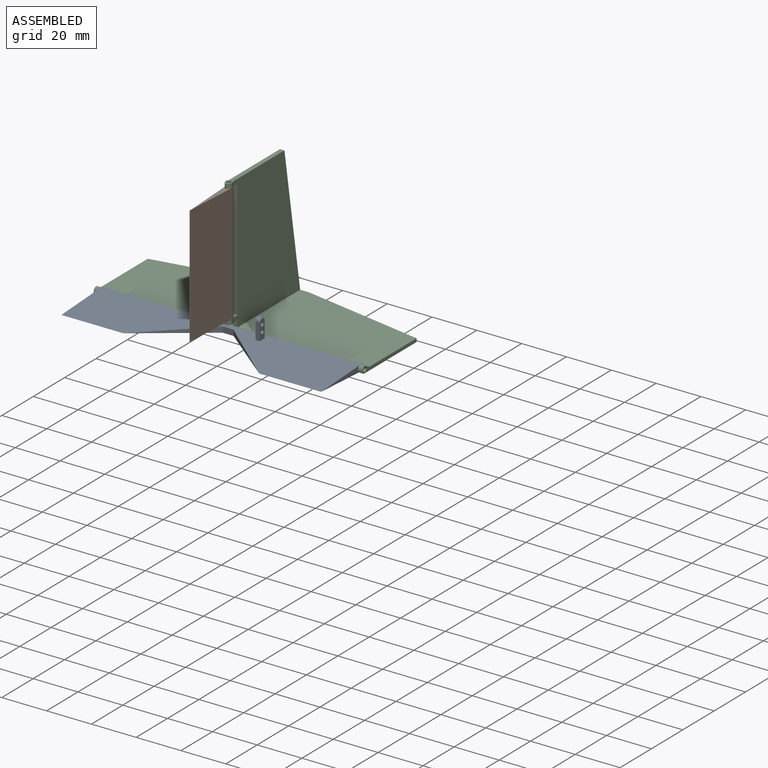
[diagram: assembled view]
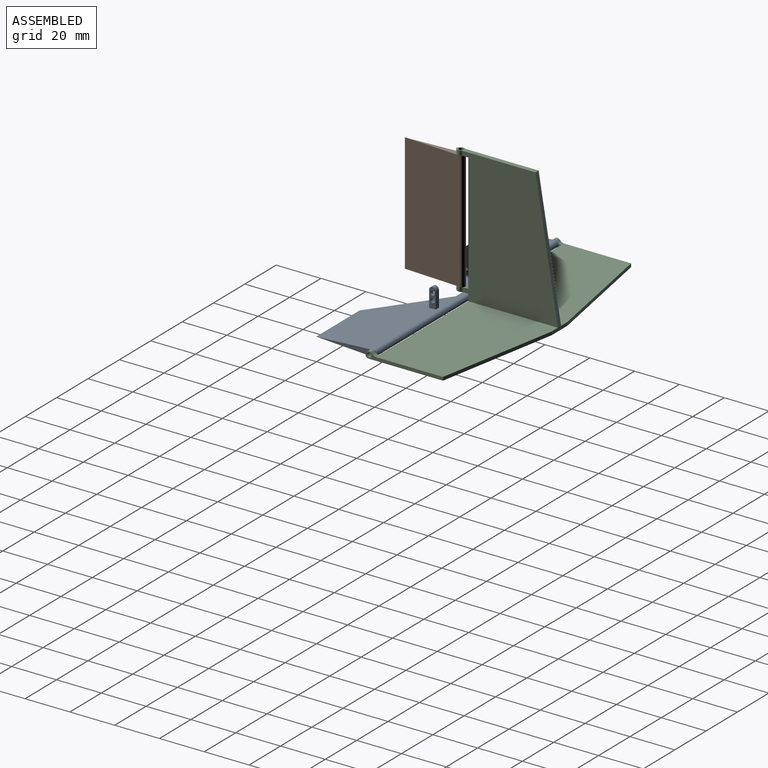
[diagram: assembled view, second angle]
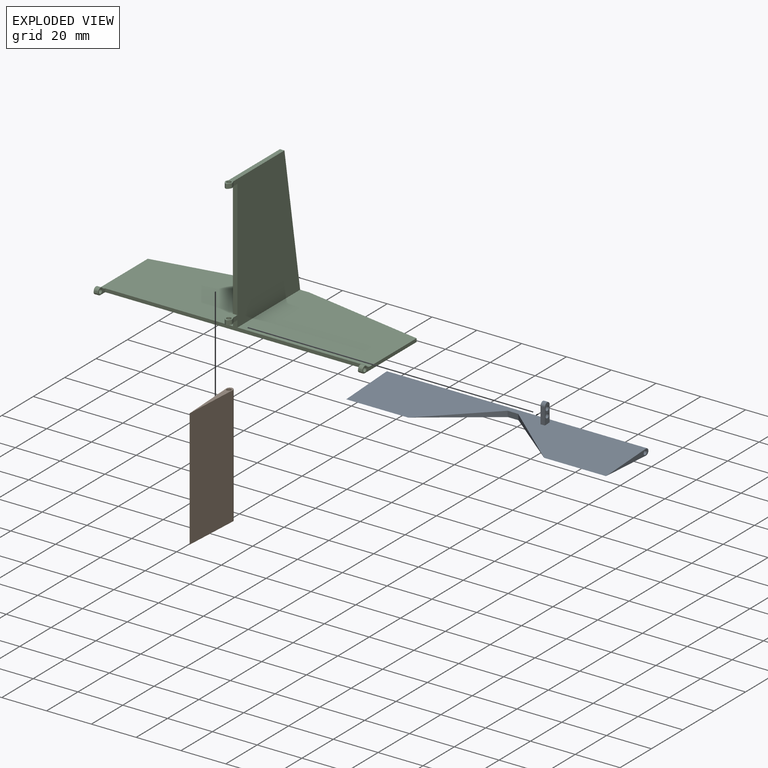
[diagram: exploded view]
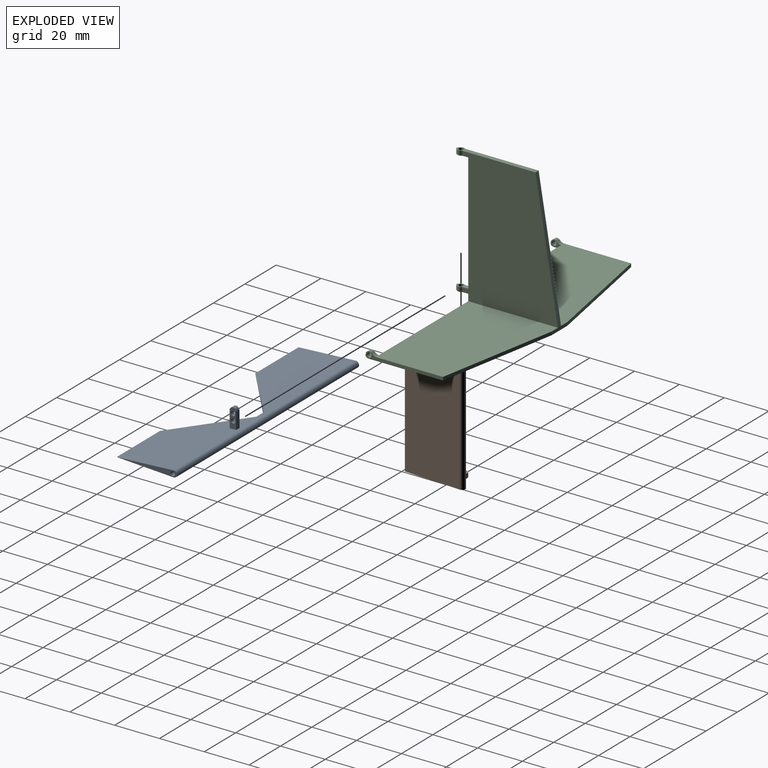
[diagram: exploded view, second angle]
ASSEMBLY  parts=3 mates=2
PART A: 17 faces, bbox 116x27x11.4 mm
  f0: plane 116x25.42mm, normal (0,-0.06,1), area 2179.4mm2, adj f1,f3,f5,f6,f7,f8,f9,f10
  f1: plane 116x25.42mm, normal (0,-0.06,-1), area 2180.6mm2, adj f0,f2,f5,f6,f7,f8,f9
  f2: cylinder r=1.5mm len=116mm, axis (-1,0,0), area 273mm2, adj f1,f3,f5,f6
  f3: cylinder r=1.5mm len=116mm, axis (-1,0,0), area 273mm2, adj f0,f2,f5,f6
  f4: cylinder r=1mm len=116mm, axis (-1,0,0), area 728.8mm2, adj f5,f6
  f5: plane 27x2.83mm, normal (1,0,0), area 36.3mm2, adj f0,f1,f2,f3,f4
  f6: plane 27x2.83mm, normal (-1,0,0), area 36.3mm2, adj f0,f1,f2,f3,f4
  f7: plane 27.95x23.57mm, normal (-0.64,-0.76,-0.04), area 47.7mm2, adj f0,f1,f8
  f8: plane 4.77x2.61mm, normal (0,-1,-0.06), area 12.5mm2, adj f0,f1,f7,f9
  f9: plane 27.95x23.57mm, normal (0.64,-0.76,-0.04), area 47.7mm2, adj f0,f1,f8
  f10: plane 7.33x2mm, normal (0,-1,0), area 14.7mm2, adj f0,f14,f15,f16
  f11: plane 7.17x2mm, normal (0,1,0), area 14.3mm2, adj f0,f14,f15,f16
  f12: cylinder r=1mm len=2mm, axis (-1,0,0), area 12.6mm2, adj f15,f16
  f13: cylinder r=1mm len=2mm, axis (-1,0,0), area 12.6mm2, adj f15,f16
  f14: cylinder r=1.5mm len=3mm, axis (-1,0,0), area 9.4mm2, adj f10,f11,f15,f16
  f15: plane 8.83x3mm, normal (1,0,0), area 19mm2, adj f0,f10,f11,f12,f13,f14
  f16: plane 8.83x3mm, normal (-1,0,0), area 19mm2, adj f0,f10,f11,f12,f13,f14
PART B: 13 faces, bbox 27x11.4x53 mm
  f0: plane 53x25.42mm, normal (-0.06,-1,0), area 1349.2mm2, adj f1,f3,f5,f6
  f1: cylinder r=1.5mm len=53mm, axis (0,0,-1), area 124.7mm2, adj f0,f2,f5,f6
  f2: cylinder r=1.5mm len=53mm, axis (0,0,-1), area 124.7mm2, adj f1,f3,f5,f6
  f3: plane 53x25.42mm, normal (-0.06,1,0), area 1343.2mm2, adj f0,f2,f5,f6,f7,f8,f12
  f4: cylinder r=1mm len=53mm, axis (0,0,-1), area 333mm2, adj f5,f6
  f5: plane 27x2.83mm, normal (0,0,1), area 36.3mm2, adj f0,f1,f2,f3,f4
  f6: plane 27x11.41mm, normal (0,0,-1), area 55.6mm2, adj f0,f1,f2,f3,f4,f7,f8,f9
  f7: plane 7.44x2mm, normal (-1,0,0), area 14.9mm2, adj f3,f6,f11,f12
  f8: plane 7.28x2mm, normal (1,0,0), area 14.6mm2, adj f3,f6,f11,f12
  f9: cylinder r=1mm len=2mm, axis (0,0,-1), area 12.6mm2, adj f6,f12
  f10: cylinder r=1mm len=2mm, axis (0,0,-1), area 12.6mm2, adj f6,f12
  f11: cylinder r=1.5mm len=3mm, axis (0,0,-1), area 9.4mm2, adj f6,f7,f8,f12
  f12: plane 8.94x3mm, normal (0,0,1), area 19.3mm2, adj f3,f7,f8,f9,f10,f11
PART C: 43 faces, bbox 120x46x61.5 mm
  f0: plane 116x4.5mm, normal (0,-1,0), area 182.4mm2, adj f4,f10,f11,f12,f13,f24,f25,f27
  f1: plane 53x2mm, normal (0,-1,0), area 106mm2, adj f12,f13,f26,f28
  f2: plane 59x39.65mm, normal (0,0,1), area 2064.1mm2, adj f7,f8,f9,f13,f25
  f3: plane 59x39.65mm, normal (0,0,1), area 2064.1mm2, adj f5,f6,f7,f12,f24
  f4: plane 4.57x3mm, normal (-1,0,0), area 7.3mm2, adj f0,f11,f18,f19,f21,f23,f24
  f5: plane 34.57x3mm, normal (1,0,0), area 52.3mm2, adj f3,f6,f11,f18,f19,f21,f23,f24
  f6: plane 55x10mm, normal (0.18,0.98,0), area 83.9mm2, adj f3,f5,f7,f11
  f7: plane 10x1.5mm, normal (0,1,0), area 15mm2, adj f2,f3,f6,f8,f11,f15
  f8: plane 55x10mm, normal (-0.18,0.98,0), area 83.9mm2, adj f2,f7,f9,f11
  f9: plane 34.57x3mm, normal (-1,0,0), area 52.3mm2, adj f2,f8,f11,f16,f17,f20,f22,f25
  f10: plane 4.57x3mm, normal (1,0,0), area 7.3mm2, adj f0,f11,f16,f17,f20,f22,f25
  f11: plane 120x43.06mm, normal (0,0,-1), area 4262.3mm2, adj f0,f4,f5,f6,f7,f8,f9,f10
  f12: plane 60x42.34mm, normal (1,0,0), area 2109.4mm2, adj f0,f1,f3,f14,f15,f24,f26,f27
  f13: plane 60x42.34mm, normal (-1,0,0), area 2109.4mm2, adj f0,f1,f2,f14,f15,f25,f26,f27
  f14: plane 35.95x3mm, normal (0,0,1), area 69.8mm2, adj f12,f13,f15,f29,f30,f34,f37,f38
  f15: plane 60x10mm, normal (0,0.99,0.16), area 121.7mm2, adj f7,f12,f13,f14
  f16: cylinder r=1mm len=2mm, axis (1,0,0), area 12.6mm2, adj f9,f10
  f17: cylinder r=1.5mm len=2.62mm, axis (1,0,0), area 7.2mm2, adj f9,f10,f22,f25
  f18: cylinder r=1mm len=2mm, axis (-1,0,0), area 12.6mm2, adj f4,f5
  f19: cylinder r=1.5mm len=2.62mm, axis (-1,0,0), area 7.2mm2, adj f4,f5,f23,f24
  f20: cylinder r=2mm len=2mm, axis (-1,0,0), area 2.1mm2, adj f9,f10,f11,f22
  f21: cylinder r=2mm len=2mm, axis (1,0,0), area 2.1mm2, adj f4,f5,f11,f23
  f22: cylinder r=1mm len=2mm, axis (-1,0,0), area 2.8mm2, adj f9,f10,f17,f20
  f23: cylinder r=1mm len=2mm, axis (1,0,0), area 2.8mm2, adj f4,f5,f19,f21
  f24: cylinder r=3mm len=59mm, axis (-1,0,0), area 25.3mm2, adj f0,f3,f4,f5,f12,f19
  f25: cylinder r=3mm len=59mm, axis (1,0,0), area 25.3mm2, adj f0,f2,f9,f10,f13,f17
  f26: plane 5.95x3mm, normal (0,0,-1), area 9.8mm2, adj f1,f12,f13,f29,f30,f34,f37,f38
  f27: plane 5.95x3mm, normal (0,0,-1), area 9.8mm2, adj f0,f12,f13,f31,f32,f33,f35,f36
  f28: plane 5.95x3mm, normal (0,0,1), area 9.8mm2, adj f1,f12,f13,f31,f32,f33,f35,f36
  f29: cylinder r=1.5mm len=2mm, axis (0,0,1), area 4.3mm2, adj f14,f26,f38,f39
  f30: cylinder r=1.5mm len=2mm, axis (0,0,1), area 4.3mm2, adj f14,f26,f37,f40
  f31: cylinder r=1.5mm len=2mm, axis (0,0,1), area 4.3mm2, adj f27,f28,f36,f41
  f32: cylinder r=1.5mm len=2mm, axis (0,0,1), area 4.3mm2, adj f27,f28,f35,f42
  f33: cylinder r=1mm len=2mm, axis (0,0,1), area 12.6mm2, adj f27,f28
  f34: cylinder r=1mm len=2mm, axis (0,0,1), area 12.6mm2, adj f14,f26
  f35: cylinder r=1.5mm len=2mm, axis (0,0,1), area 1.8mm2, adj f12,f27,f28,f32
  f36: cylinder r=1.5mm len=2mm, axis (0,0,1), area 1.8mm2, adj f13,f27,f28,f31
  f37: cylinder r=1.5mm len=2mm, axis (0,0,1), area 1.8mm2, adj f12,f14,f26,f30
  f38: cylinder r=1.5mm len=2mm, axis (0,0,1), area 1.8mm2, adj f13,f14,f26,f29
  f39: cylinder r=1.5mm len=2mm, axis (0,0,1), area 2.7mm2, adj f14,f26,f29,f40
  f40: cylinder r=1.5mm len=2mm, axis (0,0,1), area 2.7mm2, adj f14,f26,f30,f39
  f41: cylinder r=1.5mm len=2mm, axis (0,0,1), area 2.7mm2, adj f27,f28,f31,f42
  f42: cylinder r=1.5mm len=2mm, axis (0,0,1), area 2.7mm2, adj f27,f28,f32,f41
PLACE A t=(-34.79,-10.22,-33.61)mm
PLACE B rot(axis=(0,0,1),90deg) t=(19.74,-24.8,-28.61)mm
PLACE C t=(23.21,-7.22,-33.61)mm
MATE fastened A.f4 <-> C.f17  axis (-1,0,0) through (-34.79,-10.22,-33.61)mm
MATE fastened B.f4 <-> C.f33  axis (0,0,1) through (23.21,-11.22,24.39)mm
